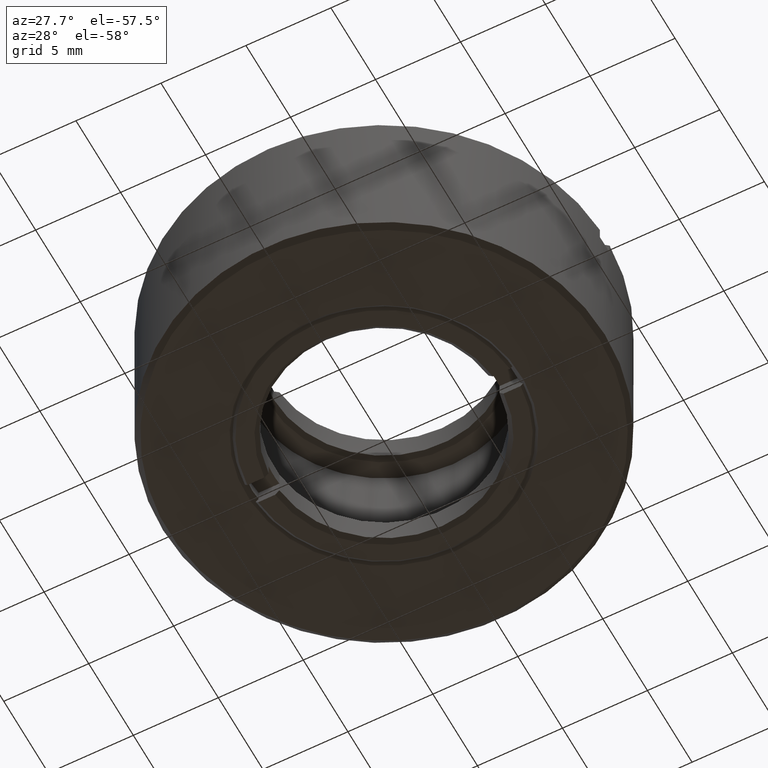
[diagram: clean part render]
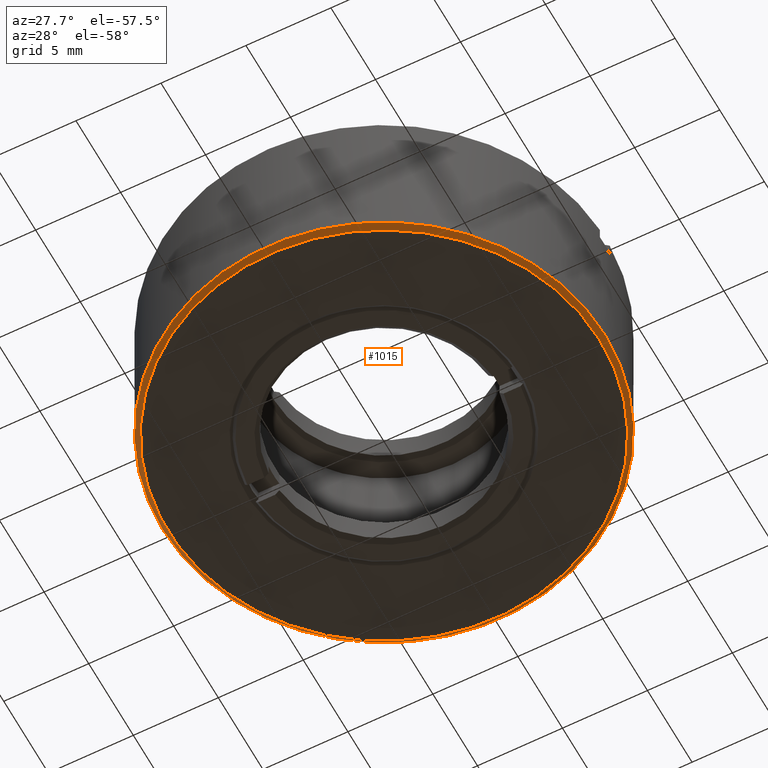
[diagram: same view with one face highlighted and labeled with its STEP entity id]
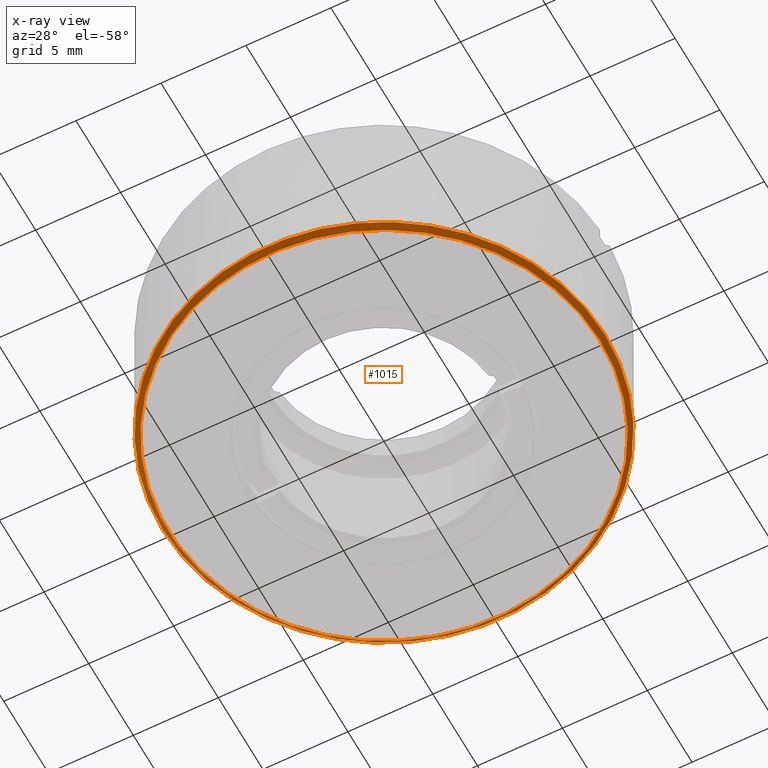
[diagram: x-ray of the same camera — body ghosted, the highlighted face saturated]
A machine part, auxiliary view. The second image highlights one B-rep face of the part: STEP entity #1015.
The next image is the same camera in x-ray: the body ghosted, the highlighted face saturated — about 0% of this face is hidden behind the body in this view.
In plain terms, the highlighted conical surface has half-angle 45 deg.
Its self-contained STEP definition (entity closure, byte-faithful):
#80 = FACE_BOUND ( 'NONE', #1265, .T. ) ;
#90 = AXIS2_PLACEMENT_3D ( 'NONE', #115, #121, #877 ) ;
#115 = CARTESIAN_POINT ( 'NONE',  ( 0.000000000000000000, 0.000000000000000000, -5.000000000000000888 ) ) ;
#121 = DIRECTION ( 'NONE',  ( 0.000000000000000000, -0.000000000000000000, 1.000000000000000000 ) ) ;
#213 = DIRECTION ( 'NONE',  ( 1.000000000000000000, 0.000000000000000000, 0.000000000000000000 ) ) ;
#242 = EDGE_LOOP ( 'NONE', ( #753 ) ) ;
#281 = DIRECTION ( 'NONE',  ( -1.000000000000000000, 0.000000000000000000, 0.000000000000000000 ) ) ;
#299 = CIRCLE ( 'NONE', #1054, 13.00000000000000355 ) ;
#371 = AXIS2_PLACEMENT_3D ( 'NONE', #568, #574, #213 ) ;
#399 = CIRCLE ( 'NONE', #90, 12.69999999999999929 ) ;
#422 = CARTESIAN_POINT ( 'NONE',  ( -13.00000000000000355, 0.000000000000000000, -4.700000000000000178 ) ) ;
#568 = CARTESIAN_POINT ( 'NONE',  ( 0.000000000000000000, 0.000000000000000000, -4.699999999999998401 ) ) ;
#574 = DIRECTION ( 'NONE',  ( 0.000000000000000000, -0.000000000000000000, 1.000000000000000000 ) ) ;
#664 = VERTEX_POINT ( 'NONE', #1400 ) ;
#753 = ORIENTED_EDGE ( 'NONE', *, *, #1357, .F. ) ;
#877 = DIRECTION ( 'NONE',  ( 1.000000000000000000, 0.000000000000000000, 0.000000000000000000 ) ) ;
#924 = VERTEX_POINT ( 'NONE', #422 ) ;
#1015 = ADVANCED_FACE ( 'NONE', ( #1195, #80 ), #1593, .T. ) ;
#1054 = AXIS2_PLACEMENT_3D ( 'NONE', #1057, #1144, #281 ) ;
#1057 = CARTESIAN_POINT ( 'NONE',  ( 0.000000000000000000, 0.000000000000000000, -4.700000000000000178 ) ) ;
#1096 = EDGE_CURVE ( 'NONE', #664, #664, #399, .T. ) ;
#1144 = DIRECTION ( 'NONE',  ( 0.000000000000000000, 0.000000000000000000, 1.000000000000000000 ) ) ;
#1195 = FACE_OUTER_BOUND ( 'NONE', #242, .T. ) ;
#1265 = EDGE_LOOP ( 'NONE', ( #1408 ) ) ;
#1357 = EDGE_CURVE ( 'NONE', #924, #924, #299, .T. ) ;
#1400 = CARTESIAN_POINT ( 'NONE',  ( 12.69999999999999929, 0.000000000000000000, -5.000000000000000888 ) ) ;
#1408 = ORIENTED_EDGE ( 'NONE', *, *, #1096, .T. ) ;
#1593 = CONICAL_SURFACE ( 'NONE', #371, 13.00000000000000533, 0.7853981633974526089 ) ;